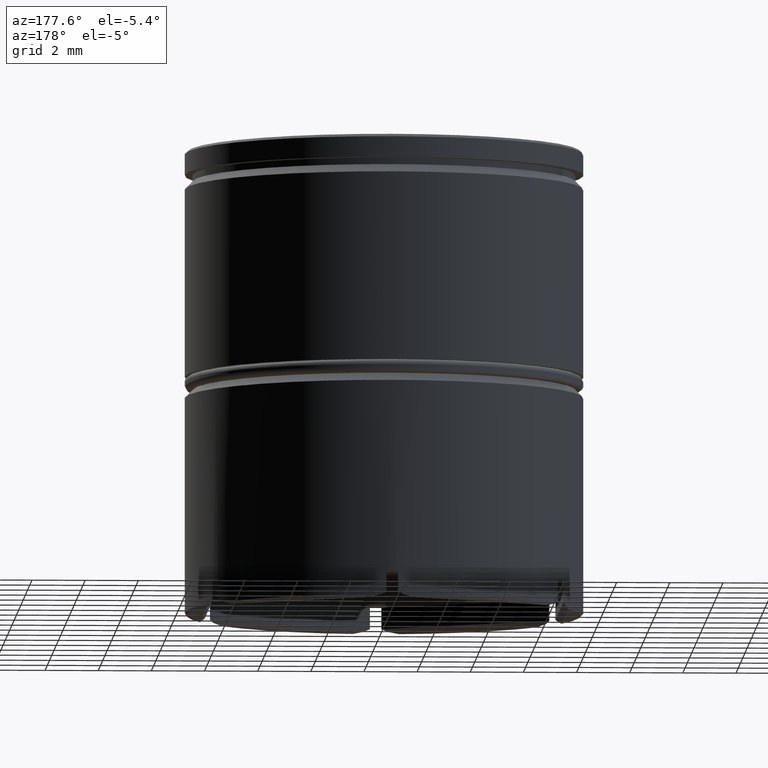
[diagram: clean part render]
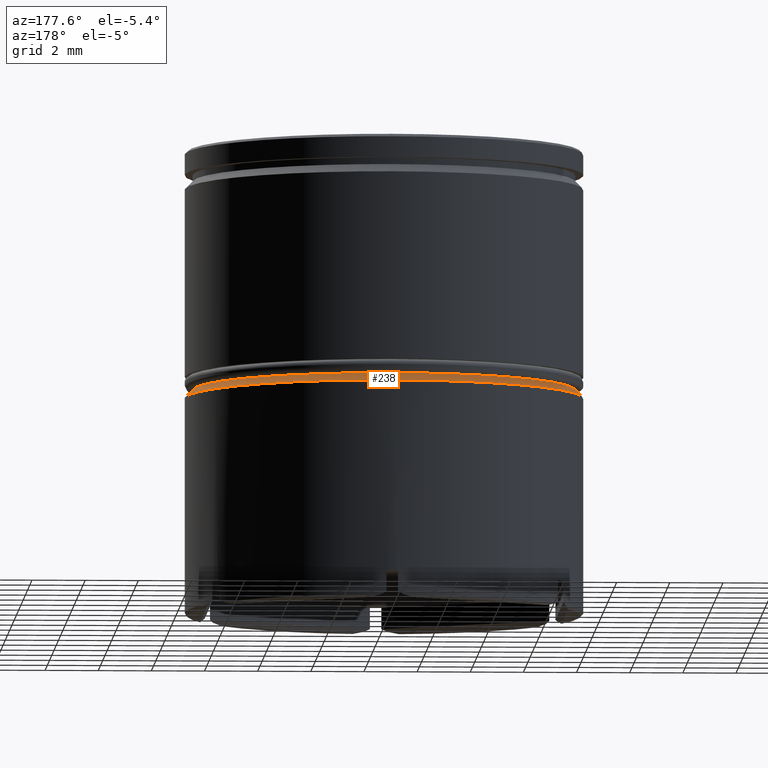
[diagram: same view with one face highlighted and labeled with its STEP entity id]
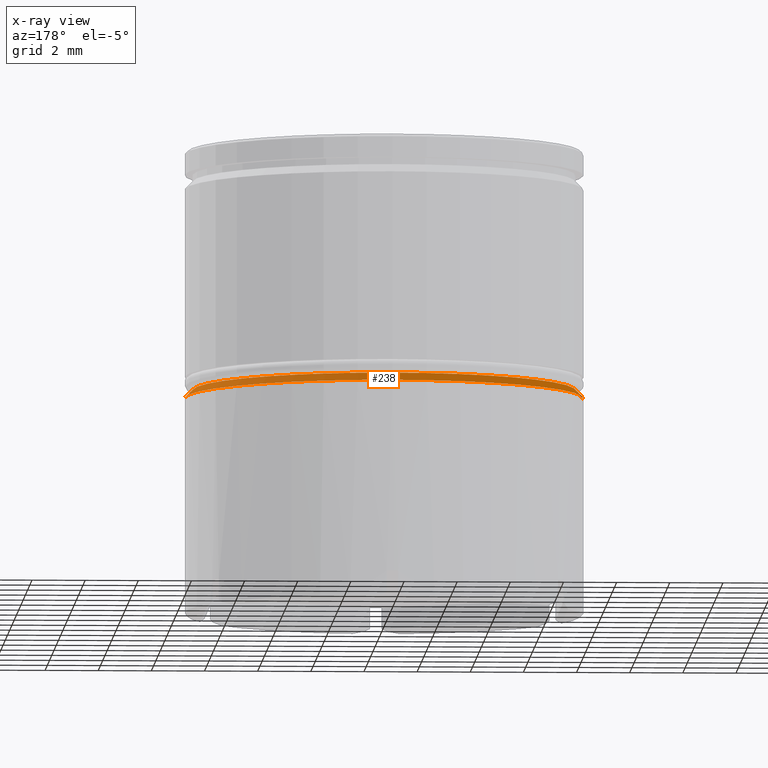
[diagram: x-ray of the same camera — body ghosted, the highlighted face saturated]
A machine part, auxiliary view. The second image highlights one B-rep face of the part: STEP entity #238.
The next image is the same camera in x-ray: the body ghosted, the highlighted face saturated — about 0% of this face is hidden behind the body in this view.
In plain terms, the highlighted conical surface has half-angle 45 deg.
Its self-contained STEP definition (entity closure, byte-faithful):
#4 = FACE_OUTER_BOUND ( 'NONE', #1330, .T. ) ;
#115 = CARTESIAN_POINT ( 'NONE',  ( 7.200000000000001954, 8.817456953860946247E-16, -9.000000000000001776 ) ) ;
#132 = DIRECTION ( 'NONE',  ( 0.7071067811865474617, 8.659560562354932858E-17, -0.7071067811865474617 ) ) ;
#141 = CARTESIAN_POINT ( 'NONE',  ( -7.200000000000000178, 8.817456953860942303E-16, -9.000000000000001776 ) ) ;
#153 = VERTEX_POINT ( 'NONE', #141 ) ;
#170 = CIRCLE ( 'NONE', #486, 7.200000000000000178 ) ;
#238 = ADVANCED_FACE ( 'NONE', ( #4 ), #1278, .T. ) ;
#243 = LINE ( 'NONE', #115, #1101 ) ;
#307 = CARTESIAN_POINT ( 'NONE',  ( 0.000000000000000000, 0.000000000000000000, -9.000000000000001776 ) ) ;
#317 = DIRECTION ( 'NONE',  ( 0.000000000000000000, 0.000000000000000000, -1.000000000000000000 ) ) ;
#394 = ORIENTED_EDGE ( 'NONE', *, *, #656, .F. ) ;
#470 = CARTESIAN_POINT ( 'NONE',  ( 7.200000000000000178, 0.000000000000000000, -9.000000000000001776 ) ) ;
#471 = VERTEX_POINT ( 'NONE', #483 ) ;
#483 = CARTESIAN_POINT ( 'NONE',  ( 7.500000000000000000, 0.000000000000000000, -9.299999999999998934 ) ) ;
#486 = AXIS2_PLACEMENT_3D ( 'NONE', #307, #690, #536 ) ;
#505 = EDGE_CURVE ( 'NONE', #1623, #471, #243, .T. ) ;
#536 = DIRECTION ( 'NONE',  ( 1.000000000000000000, 0.000000000000000000, 0.000000000000000000 ) ) ;
#560 = CARTESIAN_POINT ( 'NONE',  ( 0.000000000000000000, 0.000000000000000000, -9.299999999999998934 ) ) ;
#647 = VERTEX_POINT ( 'NONE', #666 ) ;
#656 = EDGE_CURVE ( 'NONE', #647, #471, #828, .T. ) ;
#666 = CARTESIAN_POINT ( 'NONE',  ( -7.500000000000000000, 9.184850993605147944E-16, -9.299999999999998934 ) ) ;
#668 = DIRECTION ( 'NONE',  ( 0.000000000000000000, 0.000000000000000000, -1.000000000000000000 ) ) ;
#690 = DIRECTION ( 'NONE',  ( -0.000000000000000000, -0.000000000000000000, 1.000000000000000000 ) ) ;
#767 = EDGE_CURVE ( 'NONE', #1623, #153, #170, .T. ) ;
#769 = AXIS2_PLACEMENT_3D ( 'NONE', #1062, #668, #947 ) ;
#775 = VECTOR ( 'NONE', #991, 1000.000000000000114 ) ;
#828 = CIRCLE ( 'NONE', #1576, 7.500000000000000000 ) ;
#853 = EDGE_CURVE ( 'NONE', #153, #647, #1361, .T. ) ;
#947 = DIRECTION ( 'NONE',  ( -1.000000000000000000, 0.000000000000000000, 0.000000000000000000 ) ) ;
#974 = CARTESIAN_POINT ( 'NONE',  ( -7.200000000000001954, 0.000000000000000000, -9.000000000000001776 ) ) ;
#991 = DIRECTION ( 'NONE',  ( -0.7071067811865474617, 0.000000000000000000, -0.7071067811865474617 ) ) ;
#1062 = CARTESIAN_POINT ( 'NONE',  ( 0.000000000000000000, 0.000000000000000000, -9.000000000000001776 ) ) ;
#1101 = VECTOR ( 'NONE', #132, 1000.000000000000114 ) ;
#1133 = ORIENTED_EDGE ( 'NONE', *, *, #853, .F. ) ;
#1188 = ORIENTED_EDGE ( 'NONE', *, *, #505, .T. ) ;
#1198 = DIRECTION ( 'NONE',  ( 1.000000000000000000, 0.000000000000000000, 0.000000000000000000 ) ) ;
#1244 = ORIENTED_EDGE ( 'NONE', *, *, #767, .F. ) ;
#1278 = CONICAL_SURFACE ( 'NONE', #769, 7.200000000000001954, 0.7853981633974482790 ) ;
#1330 = EDGE_LOOP ( 'NONE', ( #1244, #1188, #394, #1133 ) ) ;
#1361 = LINE ( 'NONE', #974, #775 ) ;
#1576 = AXIS2_PLACEMENT_3D ( 'NONE', #560, #317, #1198 ) ;
#1623 = VERTEX_POINT ( 'NONE', #470 ) ;